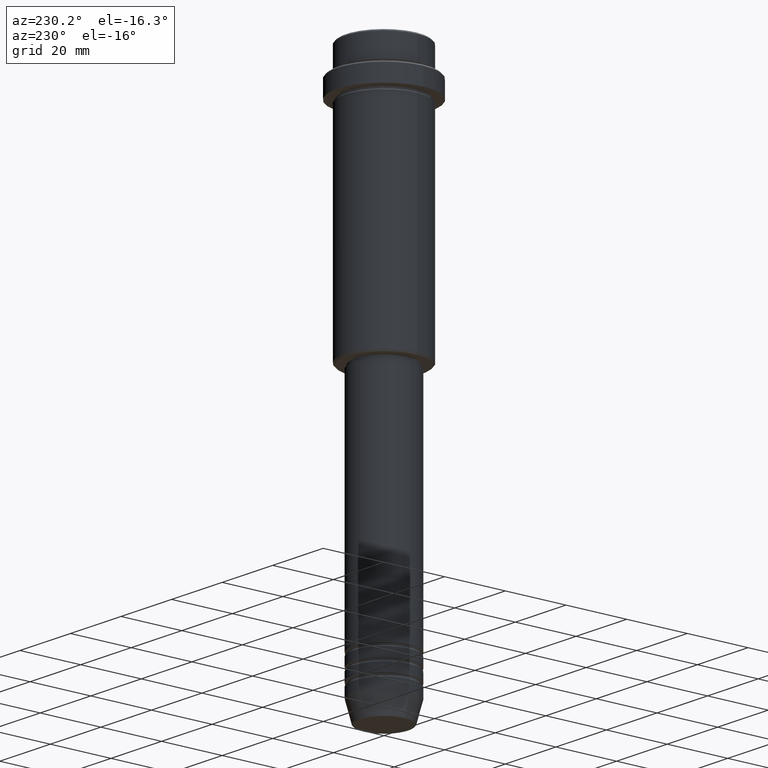
[diagram: clean part render]
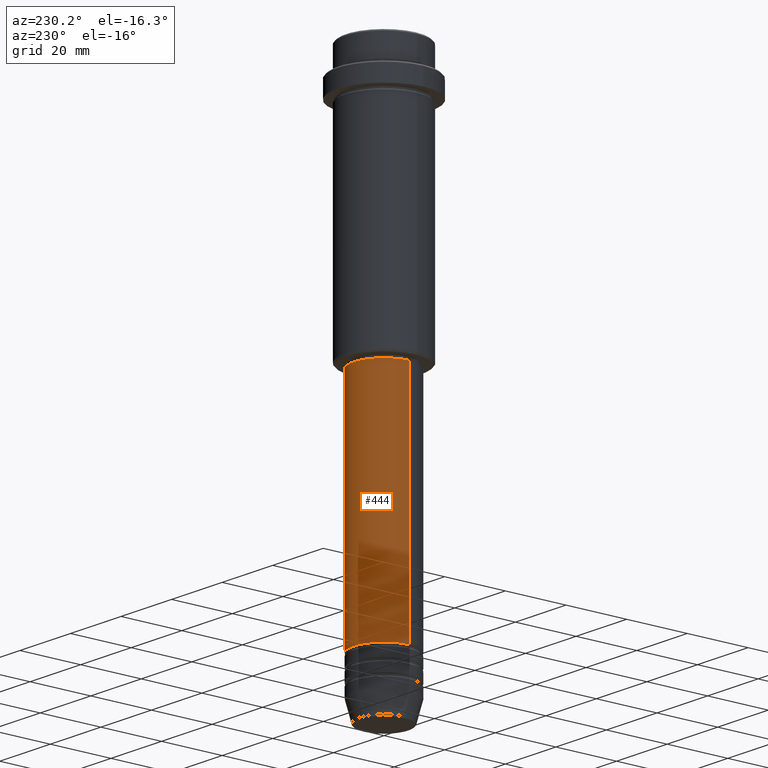
[diagram: same view with one face highlighted and labeled with its STEP entity id]
A machine part, auxiliary view. The second image highlights one B-rep face of the part: STEP entity #444.
In plain terms, the highlighted cylindrical surface (partial cylindrical patch) has radius 10 mm, axis along (-0, -0, 1).
Its self-contained STEP definition (entity closure, byte-faithful):
#33 = CYLINDRICAL_SURFACE ( 'NONE', #872, 10.00000000000000178 ) ;
#40 = LINE ( 'NONE', #1234, #154 ) ;
#112 = EDGE_CURVE ( 'NONE', #1411, #475, #245, .T. ) ;
#125 = CIRCLE ( 'NONE', #631, 10.00000000000000178 ) ;
#149 = ORIENTED_EDGE ( 'NONE', *, *, #832, .T. ) ;
#154 = VECTOR ( 'NONE', #811, 1000.000000000000000 ) ;
#171 = EDGE_CURVE ( 'NONE', #489, #726, #125, .T. ) ;
#245 = CIRCLE ( 'NONE', #965, 10.00000000000000000 ) ;
#280 = DIRECTION ( 'NONE',  ( -0.000000000000000000, -0.000000000000000000, 1.000000000000000000 ) ) ;
#281 = CARTESIAN_POINT ( 'NONE',  ( 0.000000000000000000, 0.000000000000000000, -160.9999999999998579 ) ) ;
#310 = ORIENTED_EDGE ( 'NONE', *, *, #171, .F. ) ;
#423 = LINE ( 'NONE', #942, #969 ) ;
#444 = ADVANCED_FACE ( 'NONE', ( #807 ), #33, .T. ) ;
#475 = VERTEX_POINT ( 'NONE', #1395 ) ;
#489 = VERTEX_POINT ( 'NONE', #642 ) ;
#494 = CARTESIAN_POINT ( 'NONE',  ( 0.000000000000000000, 0.000000000000000000, 0.000000000000000000 ) ) ;
#537 = ORIENTED_EDGE ( 'NONE', *, *, #112, .T. ) ;
#621 = CARTESIAN_POINT ( 'NONE',  ( 10.00000000000000000, 0.000000000000000000, -160.9999999999998579 ) ) ;
#630 = DIRECTION ( 'NONE',  ( -0.000000000000000000, -0.000000000000000000, 1.000000000000000000 ) ) ;
#631 = AXIS2_PLACEMENT_3D ( 'NONE', #1298, #1385, #748 ) ;
#642 = CARTESIAN_POINT ( 'NONE',  ( 10.00000000000000178, 0.000000000000000000, -86.00000000000000000 ) ) ;
#648 = EDGE_CURVE ( 'NONE', #1411, #489, #40, .T. ) ;
#726 = VERTEX_POINT ( 'NONE', #1042 ) ;
#748 = DIRECTION ( 'NONE',  ( 1.000000000000000000, 0.000000000000000000, 0.000000000000000000 ) ) ;
#807 = FACE_OUTER_BOUND ( 'NONE', #1075, .T. ) ;
#811 = DIRECTION ( 'NONE',  ( -0.000000000000000000, -0.000000000000000000, 1.000000000000000000 ) ) ;
#832 = EDGE_CURVE ( 'NONE', #475, #726, #423, .T. ) ;
#872 = AXIS2_PLACEMENT_3D ( 'NONE', #494, #280, #933 ) ;
#933 = DIRECTION ( 'NONE',  ( 1.000000000000000000, 0.000000000000000000, 0.000000000000000000 ) ) ;
#942 = CARTESIAN_POINT ( 'NONE',  ( -10.00000000000000178, 1.224646799147353454E-15, 0.000000000000000000 ) ) ;
#965 = AXIS2_PLACEMENT_3D ( 'NONE', #281, #1162, #1184 ) ;
#969 = VECTOR ( 'NONE', #630, 1000.000000000000000 ) ;
#1042 = CARTESIAN_POINT ( 'NONE',  ( -10.00000000000000178, 1.224646799147353454E-15, -86.00000000000000000 ) ) ;
#1075 = EDGE_LOOP ( 'NONE', ( #537, #149, #310, #1365 ) ) ;
#1162 = DIRECTION ( 'NONE',  ( -0.000000000000000000, -0.000000000000000000, 1.000000000000000000 ) ) ;
#1184 = DIRECTION ( 'NONE',  ( 1.000000000000000000, 0.000000000000000000, 0.000000000000000000 ) ) ;
#1234 = CARTESIAN_POINT ( 'NONE',  ( 10.00000000000000178, 0.000000000000000000, 0.000000000000000000 ) ) ;
#1298 = CARTESIAN_POINT ( 'NONE',  ( 0.000000000000000000, 0.000000000000000000, -86.00000000000000000 ) ) ;
#1365 = ORIENTED_EDGE ( 'NONE', *, *, #648, .F. ) ;
#1385 = DIRECTION ( 'NONE',  ( -0.000000000000000000, -0.000000000000000000, 1.000000000000000000 ) ) ;
#1395 = CARTESIAN_POINT ( 'NONE',  ( -10.00000000000000000, 1.224646799147353256E-15, -160.9999999999998579 ) ) ;
#1411 = VERTEX_POINT ( 'NONE', #621 ) ;